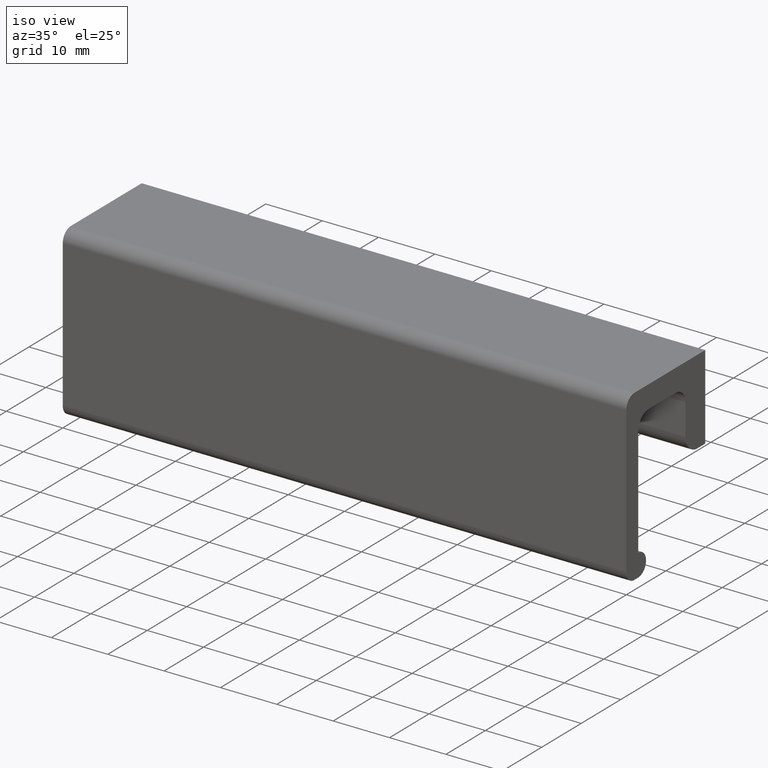
[diagram: clean part render]
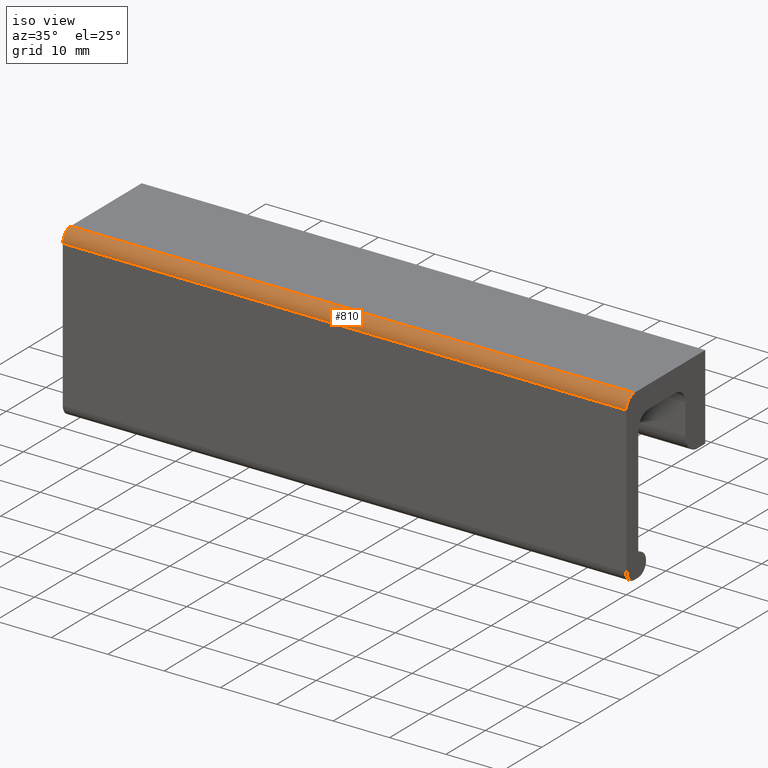
[diagram: same view with one face highlighted and labeled with its STEP entity id]
A machine part, iso view. The second image highlights one B-rep face of the part: STEP entity #810.
In plain terms, the highlighted face is a freeform B-spline surface patch.
Its self-contained STEP definition (entity closure, byte-faithful):
#588=CARTESIAN_POINT('',(0.0,-20.0,-2.0));
#589=VERTEX_POINT('',#588);
#595=CARTESIAN_POINT('',(0.0,-18.0,2.220446E-016));
#596=VERTEX_POINT('',#595);
#597=CARTESIAN_POINT('',(0.0,-18.0,0.0));
#598=CARTESIAN_POINT('',(0.0,-19.999999999999996,0.0));
#599=CARTESIAN_POINT('',(0.0,-20.0,-2.0));
#607=(BOUNDED_CURVE()B_SPLINE_CURVE(2,(#597,#598,#599),.UNSPECIFIED.,.F.,.U.)CURVE()GEOMETRIC_REPRESENTATION_ITEM()QUASI_UNIFORM_CURVE()RATIONAL_B_SPLINE_CURVE((1.0,0.707106781186548,1.0))REPRESENTATION_ITEM(''));
#608=EDGE_CURVE('',#596,#589,#607,.T.);
#632=CARTESIAN_POINT('',(100.0,-18.0,2.220446E-016));
#633=VERTEX_POINT('',#632);
#639=CARTESIAN_POINT('',(100.0,-20.0,-2.0));
#640=VERTEX_POINT('',#639);
#641=CARTESIAN_POINT('',(100.0,-18.0,0.0));
#642=CARTESIAN_POINT('',(100.0,-19.999999999999996,0.0));
#643=CARTESIAN_POINT('',(100.0,-20.0,-2.0));
#651=(BOUNDED_CURVE()B_SPLINE_CURVE(2,(#641,#642,#643),.UNSPECIFIED.,.F.,.U.)CURVE()GEOMETRIC_REPRESENTATION_ITEM()QUASI_UNIFORM_CURVE()RATIONAL_B_SPLINE_CURVE((1.0,0.707106781186548,1.0))REPRESENTATION_ITEM(''));
#652=EDGE_CURVE('',#633,#640,#651,.T.);
#772=CARTESIAN_POINT('',(100.0,-18.0,2.220446E-016));
#773=CARTESIAN_POINT('',(0.0,-18.0,2.220446E-016));
#774=QUASI_UNIFORM_CURVE('',1,(#772,#773),.UNSPECIFIED.,.F.,.U.);
#775=EDGE_CURVE('',#633,#596,#774,.T.);
#786=CARTESIAN_POINT('',(102.500000000000000,-17.912761225269328,-0.001903556836285));
#787=CARTESIAN_POINT('',(-2.562500000000000,-17.912761225269328,-0.001903556836285));
#788=CARTESIAN_POINT('',(102.500000000000010,-20.152120528918076,0.095868981871968));
#789=CARTESIAN_POINT('',(-2.562500000000001,-20.152120528918076,0.095868981871968));
#790=CARTESIAN_POINT('',(102.500000000000030,-19.995085826463828,-2.140116184087046));
#791=CARTESIAN_POINT('',(-2.562500000000000,-19.995085826463828,-2.140116184087046));
#799=(BOUNDED_SURFACE()B_SPLINE_SURFACE(1,2,((#786,#788,#790),(#787,#789,#791)),.UNSPECIFIED.,.F.,.F.,.U.)B_SPLINE_SURFACE_WITH_KNOTS((2,2),(3,3),(0.0,105.062500000000000),(0.0,3.583485079683966),.UNSPECIFIED.)GEOMETRIC_REPRESENTATION_ITEM()RATIONAL_B_SPLINE_SURFACE(((1.0,0.664513898535122,0.996233561259061),(1.0,0.664513898535122,0.996233561259061)))REPRESENTATION_ITEM('')SURFACE());
#800=ORIENTED_EDGE('',*,*,#608,.T.);
#801=CARTESIAN_POINT('',(100.0,-20.0,-2.0));
#802=CARTESIAN_POINT('',(0.0,-20.0,-2.0));
#803=QUASI_UNIFORM_CURVE('',1,(#801,#802),.UNSPECIFIED.,.F.,.U.);
#804=EDGE_CURVE('',#640,#589,#803,.T.);
#805=ORIENTED_EDGE('',*,*,#804,.F.);
#806=ORIENTED_EDGE('',*,*,#652,.F.);
#807=ORIENTED_EDGE('',*,*,#775,.T.);
#808=EDGE_LOOP('',(#800,#805,#806,#807));
#809=FACE_OUTER_BOUND('',#808,.T.);
#810=ADVANCED_FACE('',(#809),#799,.T.);